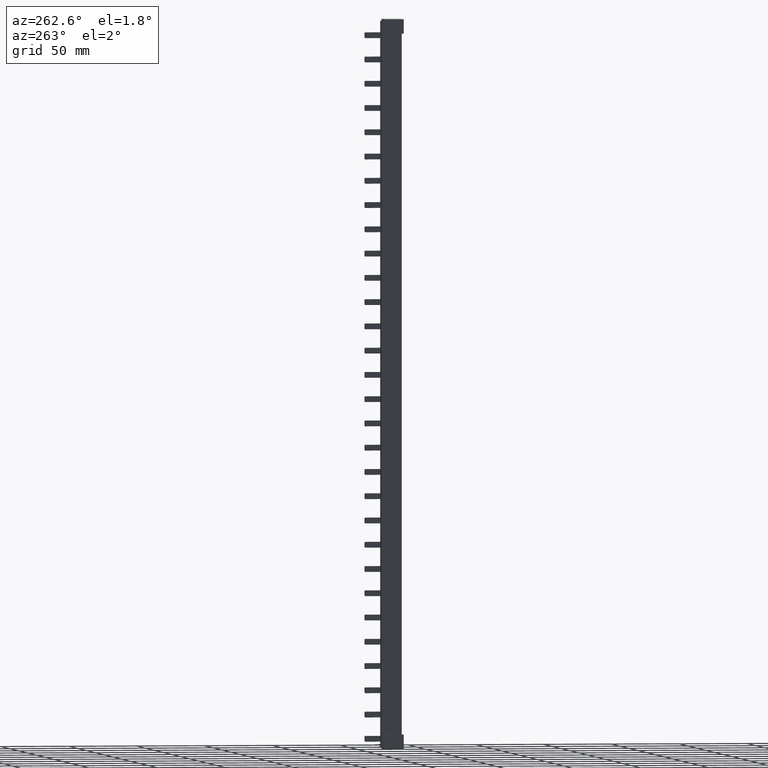
[diagram: clean part render]
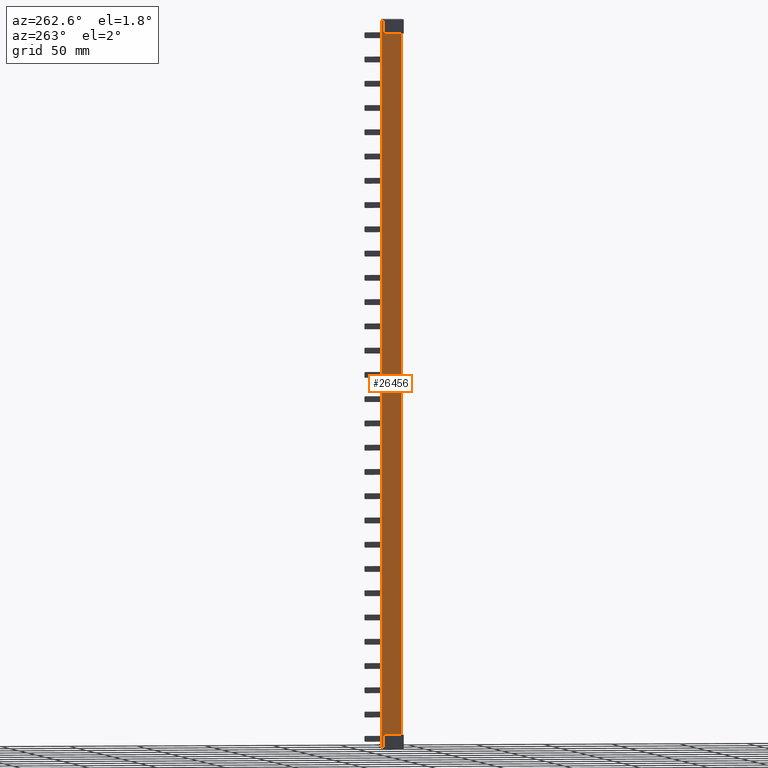
[diagram: same view with one face highlighted and labeled with its STEP entity id]
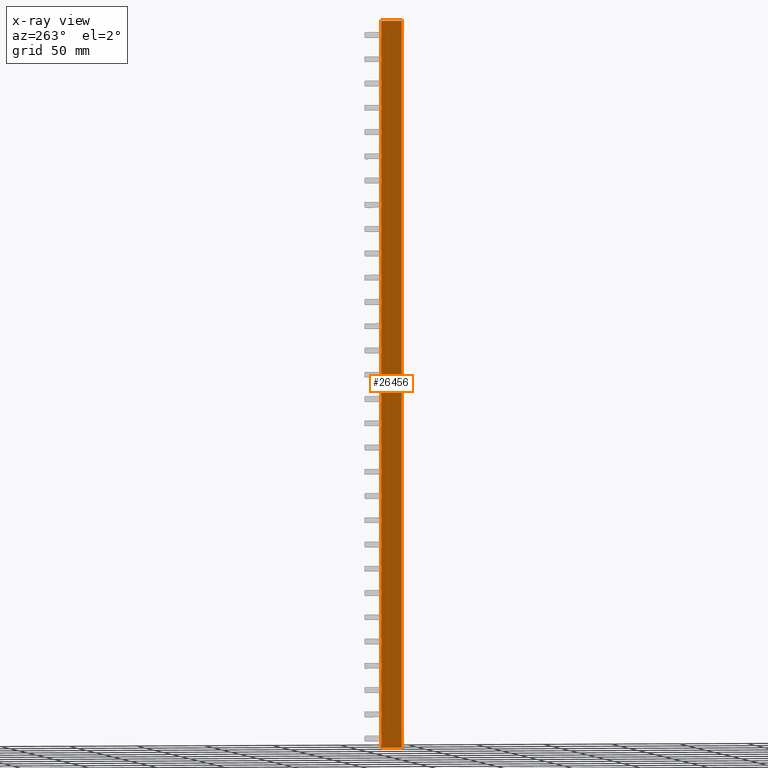
[diagram: x-ray of the same camera — body ghosted, the highlighted face saturated]
A machine part, auxiliary view. The second image highlights one B-rep face of the part: STEP entity #26456.
The next image is the same camera in x-ray: the body ghosted, the highlighted face saturated — about 0% of this face is hidden behind the body in this view.
In plain terms, the highlighted planar face has unit normal (1, -0, 0).
Its self-contained STEP definition (entity closure, byte-faithful):
#3999 = DIRECTION ( 'NONE',  ( -0.0000000000000000000, -1.000000000000000000, -0.0000000000000000000 ) ) ;
#4014 = CARTESIAN_POINT ( 'NONE',  ( 0.0000000000000000000, 14.99999999999998600, 217.7999999999999800 ) ) ;
#4024 = LINE ( 'NONE', #4014, #39014 ) ;
#5754 = EDGE_LOOP ( 'NONE', ( #30246, #30260, #30274, #30284, #30272, #30273, #30229, #30244, #30258 ) ) ;
#6452 = EDGE_CURVE ( 'NONE', #26775, #26749, #4024, .T. ) ;
#6562 = EDGE_CURVE ( 'NONE', #26762, #26749, #28648, .T. ) ;
#6566 = EDGE_CURVE ( 'NONE', #26684, #26775, #39393, .T. ) ;
#6630 = EDGE_CURVE ( 'NONE', #26814, #26813, #39656, .T. ) ;
#6633 = EDGE_CURVE ( 'NONE', #26814, #26808, #28658, .T. ) ;
#6650 = EDGE_CURVE ( 'NONE', #26858, #26684, #39765, .T. ) ;
#6651 = EDGE_CURVE ( 'NONE', #26858, #26851, #39780, .T. ) ;
#6658 = EDGE_CURVE ( 'NONE', #26762, #26808, #39771, .T. ) ;
#6662 = EDGE_CURVE ( 'NONE', #26851, #26813, #39785, .T. ) ;
#9831 = FACE_OUTER_BOUND ( 'NONE', #5754, .T. ) ;
#9835 = CARTESIAN_POINT ( 'NONE',  ( 0.0000000000000000000, 14.99999999999998600, 220.2000000000000200 ) ) ;
#9836 = DIRECTION ( 'NONE',  ( 1.000000000000000000, -0.0000000000000000000, 0.0000000000000000000 ) ) ;
#9848 = PLANE ( 'NONE',  #22988 ) ;
#9851 = DIRECTION ( 'NONE',  ( 0.0000000000000000000, 0.0000000000000000000, -1.000000000000000000 ) ) ;
#10357 = CARTESIAN_POINT ( 'NONE',  ( 0.0000000000000000000, 14.99999999999998600, 217.7999999999999800 ) ) ;
#10419 = CARTESIAN_POINT ( 'NONE',  ( 0.0000000000000000000, 13.60000000000009400, 217.7999999999999800 ) ) ;
#10431 = CARTESIAN_POINT ( 'NONE',  ( 0.0000000000000000000, 0.01270166592209491900, 217.7999999999999800 ) ) ;
#10437 = CARTESIAN_POINT ( 'NONE',  ( 0.0000000000000000000, -3.275151432143953700E-012, 217.7999030755639800 ) ) ;
#10465 = CARTESIAN_POINT ( 'NONE',  ( 0.0000000000000000000, 13.60000000000009400, -313.8000000000005800 ) ) ;
#10469 = CARTESIAN_POINT ( 'NONE',  ( 0.0000000000000000000, 14.99999999999998600, -313.8044323794305800 ) ) ;
#10477 = CARTESIAN_POINT ( 'NONE',  ( 0.0000000000000000000, 13.60000000000009400, -313.8044323794305800 ) ) ;
#10487 = CARTESIAN_POINT ( 'NONE',  ( 0.0000000000000000000, 0.01270166523091779100, -313.8000000000001800 ) ) ;
#10489 = CARTESIAN_POINT ( 'NONE',  ( -8.724474723982679100E-009, -5.056718932472392700E-013, -313.7999030745502900 ) ) ;
#22988 = AXIS2_PLACEMENT_3D ( 'NONE', #9835, #9836, #9851 ) ;
#26456 = ADVANCED_FACE ( 'NONE', ( #9831 ), #9848, .F. ) ;
#26684 = VERTEX_POINT ( 'NONE', #10357 ) ;
#26749 = VERTEX_POINT ( 'NONE', #10431 ) ;
#26762 = VERTEX_POINT ( 'NONE', #10437 ) ;
#26775 = VERTEX_POINT ( 'NONE', #10419 ) ;
#26808 = VERTEX_POINT ( 'NONE', #10489 ) ;
#26813 = VERTEX_POINT ( 'NONE', #10465 ) ;
#26814 = VERTEX_POINT ( 'NONE', #10487 ) ;
#26851 = VERTEX_POINT ( 'NONE', #10477 ) ;
#26858 = VERTEX_POINT ( 'NONE', #10469 ) ;
#28648 = B_SPLINE_CURVE_WITH_KNOTS ( 'NONE', 3,
 ( #39373, #39385, #39415, #39411 ),
 .UNSPECIFIED., .F., .F.,
 ( 4, 4 ),
 ( 1.145178459283533300E-016, 1.270203572751608400E-005 ),
 .UNSPECIFIED. ) ;
#28658 = B_SPLINE_CURVE_WITH_KNOTS ( 'NONE', 3,
 ( #39679, #39646, #39660, #39662 ),
 .UNSPECIFIED., .F., .F.,
 ( 4, 4 ),
 ( 8.785036093765865200E-016, 1.270203504231915600E-005 ),
 .UNSPECIFIED. ) ;
#30229 = ORIENTED_EDGE ( 'NONE', *, *, #6662, .T. ) ;
#30244 = ORIENTED_EDGE ( 'NONE', *, *, #6630, .F. ) ;
#30246 = ORIENTED_EDGE ( 'NONE', *, *, #6658, .F. ) ;
#30258 = ORIENTED_EDGE ( 'NONE', *, *, #6633, .T. ) ;
#30260 = ORIENTED_EDGE ( 'NONE', *, *, #6562, .T. ) ;
#30272 = ORIENTED_EDGE ( 'NONE', *, *, #6650, .F. ) ;
#30273 = ORIENTED_EDGE ( 'NONE', *, *, #6651, .T. ) ;
#30274 = ORIENTED_EDGE ( 'NONE', *, *, #6452, .F. ) ;
#30284 = ORIENTED_EDGE ( 'NONE', *, *, #6566, .F. ) ;
#39014 = VECTOR ( 'NONE', #3999, 1000.000000000000000 ) ;
#39129 = VECTOR ( 'NONE', #39396, 1000.000000000000000 ) ;
#39222 = VECTOR ( 'NONE', #39642, 1000.000000000000000 ) ;
#39228 = VECTOR ( 'NONE', #39776, 1000.000000000000000 ) ;
#39232 = VECTOR ( 'NONE', #39803, 1000.000000000000000 ) ;
#39240 = VECTOR ( 'NONE', #39808, 1000.000000000000000 ) ;
#39248 = VECTOR ( 'NONE', #39743, 1000.000000000000000 ) ;
#39373 = CARTESIAN_POINT ( 'NONE',  ( 0.0000000000000000000, -3.275151432143953700E-012, 217.7999030755639800 ) ) ;
#39385 = CARTESIAN_POINT ( 'NONE',  ( 4.972129702525468600E-011, 0.004233506538782443700, 217.7999684908001800 ) ) ;
#39393 = LINE ( 'NONE', #39404, #39129 ) ;
#39396 = DIRECTION ( 'NONE',  ( 0.0000000000000000000, -1.000000000000000000, -0.0000000000000000000 ) ) ;
#39404 = CARTESIAN_POINT ( 'NONE',  ( 0.0000000000000000000, 14.99999999999998600, 217.7999999999999800 ) ) ;
#39411 = CARTESIAN_POINT ( 'NONE',  ( 0.0000000000000000000, 0.01270166592209491900, 217.7999999999999800 ) ) ;
#39415 = CARTESIAN_POINT ( 'NONE',  ( 0.0000000000000000000, 0.008467653997013491200, 217.8000000000000700 ) ) ;
#39636 = CARTESIAN_POINT ( 'NONE',  ( 0.0000000000000000000, 14.99999999999998600, -313.8000000000000700 ) ) ;
#39642 = DIRECTION ( 'NONE',  ( 0.0000000000000000000, 1.000000000000000000, 0.0000000000000000000 ) ) ;
#39646 = CARTESIAN_POINT ( 'NONE',  ( 0.0000000000000000000, 0.008467653502638375700, -313.8000000000003000 ) ) ;
#39656 = LINE ( 'NONE', #39636, #39222 ) ;
#39660 = CARTESIAN_POINT ( 'NONE',  ( 0.0000000000000000000, 0.004233506216107292400, -313.7999684908516500 ) ) ;
#39662 = CARTESIAN_POINT ( 'NONE',  ( -8.724474723982679100E-009, -5.056718932472392700E-013, -313.7999030745502900 ) ) ;
#39679 = CARTESIAN_POINT ( 'NONE',  ( 0.0000000000000000000, 0.01270166523091779100, -313.8000000000001800 ) ) ;
#39743 = DIRECTION ( 'NONE',  ( -0.0000000000000000000, -0.0000000000000000000, 1.000000000000000000 ) ) ;
#39765 = LINE ( 'NONE', #39779, #39248 ) ;
#39768 = CARTESIAN_POINT ( 'NONE',  ( 0.0000000000000000000, 14.99999999999998600, -313.8044323794305800 ) ) ;
#39771 = LINE ( 'NONE', #39784, #39232 ) ;
#39776 = DIRECTION ( 'NONE',  ( 0.0000000000000000000, -1.000000000000000000, 0.0000000000000000000 ) ) ;
#39779 = CARTESIAN_POINT ( 'NONE',  ( 0.0000000000000000000, 14.99999999999998600, 220.2000000000000200 ) ) ;
#39780 = LINE ( 'NONE', #39768, #39228 ) ;
#39784 = CARTESIAN_POINT ( 'NONE',  ( 0.0000000000000000000, -1.011343786494478500E-012, 220.2000000000000200 ) ) ;
#39785 = LINE ( 'NONE', #39795, #39240 ) ;
#39795 = CARTESIAN_POINT ( 'NONE',  ( 0.0000000000000000000, 13.60000000000009400, -304.5000000000075600 ) ) ;
#39803 = DIRECTION ( 'NONE',  ( 0.0000000000000000000, 0.0000000000000000000, -1.000000000000000000 ) ) ;
#39808 = DIRECTION ( 'NONE',  ( 0.0000000000000000000, 0.0000000000000000000, 1.000000000000000000 ) ) ;